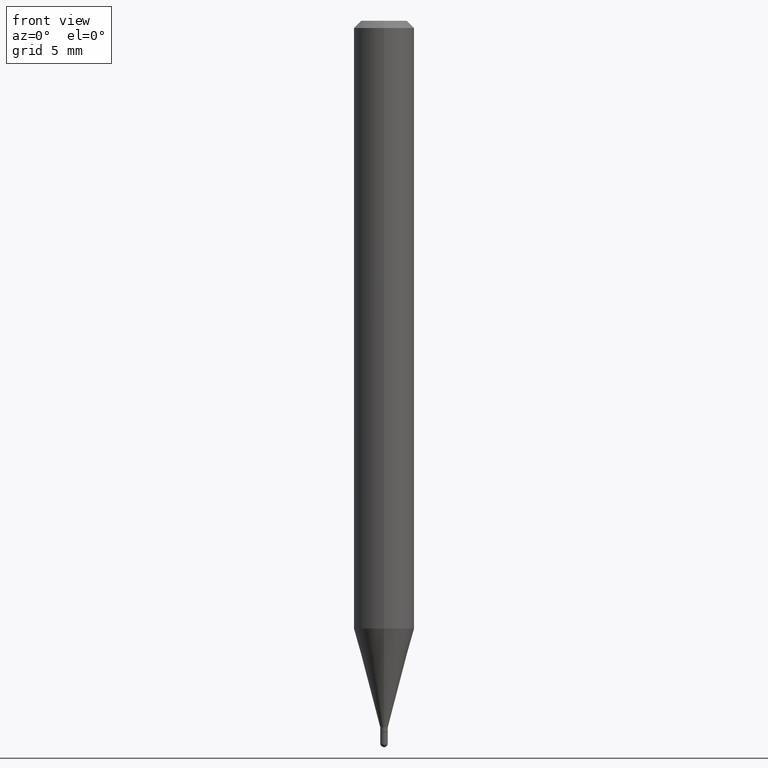
[diagram: clean part render]
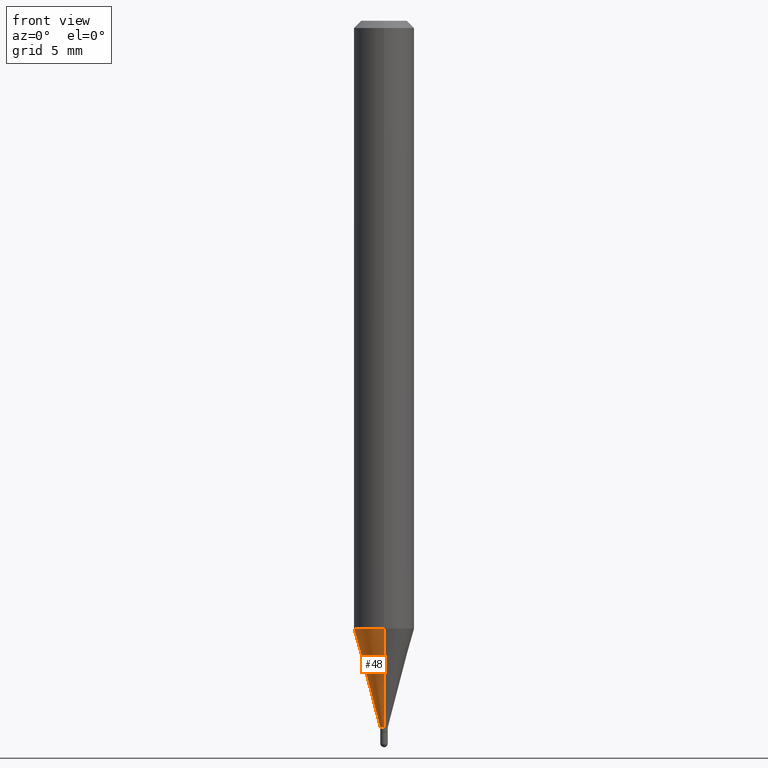
[diagram: same view with one face highlighted and labeled with its STEP entity id]
A machine part, front view. The second image highlights one B-rep face of the part: STEP entity #48.
In plain terms, the highlighted conical surface has half-angle 15 deg.
Its self-contained STEP definition (entity closure, byte-faithful):
#13 = EDGE_CURVE ( 'NONE', #84, #385, #509, .T. ) ;
#29 = DIRECTION ( 'NONE',  ( -2.439138624469671930E-29, 3.500546519351259222E-15, 1.000000000000000000 ) ) ;
#32 = CARTESIAN_POINT ( 'NONE',  ( 5.542233338931899045E-17, 0.007799999999994273320, -1.459000000000000519 ) ) ;
#44 = FACE_OUTER_BOUND ( 'NONE', #210, .T. ) ;
#48 = ADVANCED_FACE ( 'NONE', ( #44 ), #376, .T. ) ;
#78 = ORIENTED_EDGE ( 'NONE', *, *, #208, .T. ) ;
#79 = CARTESIAN_POINT ( 'NONE',  ( -4.364351673553612983E-16, -0.06250000000000442701, -1.254856820825980934 ) ) ;
#84 = VERTEX_POINT ( 'NONE', #505 ) ;
#88 = DIRECTION ( 'NONE',  ( -6.982962677686266711E-15, -1.000000000000000000, 0.000000000000000000 ) ) ;
#95 = AXIS2_PLACEMENT_3D ( 'NONE', #299, #29, #259 ) ;
#126 = CARTESIAN_POINT ( 'NONE',  ( -5.446710888591296590E-17, -0.007800000000004487372, -1.459000000000000519 ) ) ;
#148 = AXIS2_PLACEMENT_3D ( 'NONE', #485, #487, #334 ) ;
#149 = VECTOR ( 'NONE', #495, 39.37007874015748143 ) ;
#189 = CARTESIAN_POINT ( 'NONE',  ( 3.558703253101252922E-29, -5.107297371733488374E-15, -1.459000000000000519 ) ) ;
#204 = CARTESIAN_POINT ( 'NONE',  ( -5.446710888591296590E-17, -0.007800000000004487372, -1.459000000000000519 ) ) ;
#208 = EDGE_CURVE ( 'NONE', #227, #364, #421, .T. ) ;
#210 = EDGE_LOOP ( 'NONE', ( #470, #78, #360, #232 ) ) ;
#227 = VERTEX_POINT ( 'NONE', #290 ) ;
#232 = ORIENTED_EDGE ( 'NONE', *, *, #13, .F. ) ;
#237 = LINE ( 'NONE', #126, #468 ) ;
#259 = DIRECTION ( 'NONE',  ( -6.982962677686265922E-15, -1.000000000000000000, 4.370956789862819572E-15 ) ) ;
#283 = DIRECTION ( 'NONE',  ( -1.807323732225330534E-15, -0.2588190451025182415, 0.9659258262890689783 ) ) ;
#290 = CARTESIAN_POINT ( 'NONE',  ( 2.497557716197062816E-16, 0.007799999999994272452, -1.459000000000000519 ) ) ;
#299 = CARTESIAN_POINT ( 'NONE',  ( 3.060769739855869221E-29, -4.392684676426576223E-15, -1.254856820825981156 ) ) ;
#300 = EDGE_CURVE ( 'NONE', #227, #84, #374, .T. ) ;
#334 = DIRECTION ( 'NONE',  ( -6.982962677686266711E-15, -1.000000000000000000, 0.000000000000000000 ) ) ;
#352 = AXIS2_PLACEMENT_3D ( 'NONE', #189, #506, #88 ) ;
#360 = ORIENTED_EDGE ( 'NONE', *, *, #395, .T. ) ;
#364 = VERTEX_POINT ( 'NONE', #204 ) ;
#374 = LINE ( 'NONE', #32, #149 ) ;
#376 = CONICAL_SURFACE ( 'NONE', #352, 0.007799999999999380346, 0.2617993877991502960 ) ;
#385 = VERTEX_POINT ( 'NONE', #79 ) ;
#395 = EDGE_CURVE ( 'NONE', #364, #385, #237, .T. ) ;
#421 = CIRCLE ( 'NONE', #148, 0.007799999999999380346 ) ;
#468 = VECTOR ( 'NONE', #283, 39.37007874015748143 ) ;
#470 = ORIENTED_EDGE ( 'NONE', *, *, #300, .F. ) ;
#485 = CARTESIAN_POINT ( 'NONE',  ( 3.558703253101252922E-29, -5.107297371733488374E-15, -1.459000000000000519 ) ) ;
#487 = DIRECTION ( 'NONE',  ( -2.439138624469671930E-29, 3.500546519351259222E-15, 1.000000000000000000 ) ) ;
#495 = DIRECTION ( 'NONE',  ( 1.839019923739600710E-15, 0.2588190451025250138, 0.9659258262890670910 ) ) ;
#505 = CARTESIAN_POINT ( 'NONE',  ( 4.440892098500931845E-16, 0.06249999999999562156, -1.254856820825981378 ) ) ;
#506 = DIRECTION ( 'NONE',  ( -2.439138624469671930E-29, 3.500546519351259222E-15, 1.000000000000000000 ) ) ;
#509 = CIRCLE ( 'NONE', #95, 0.06250000000000002776 ) ;